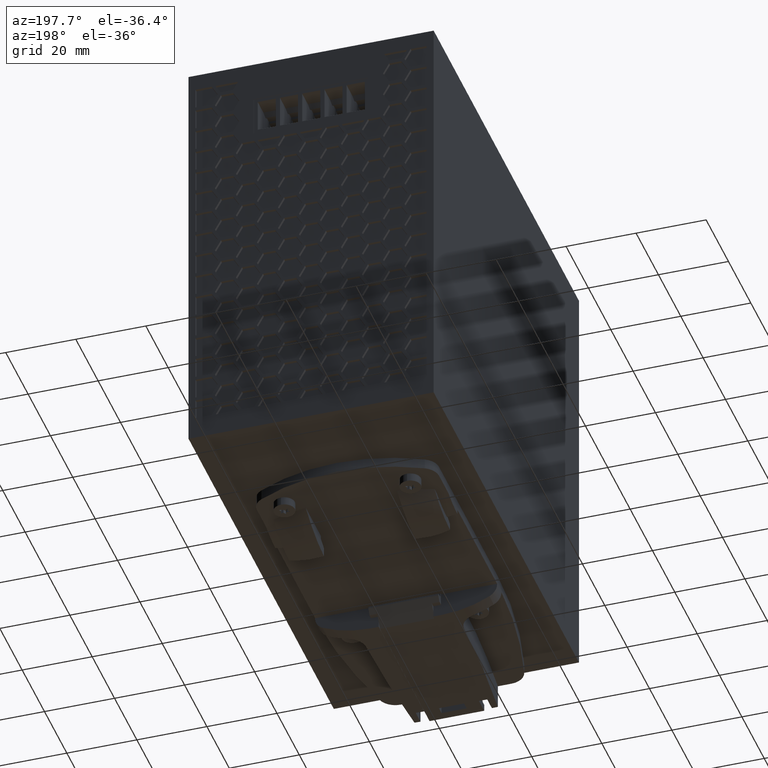
[diagram: clean part render]
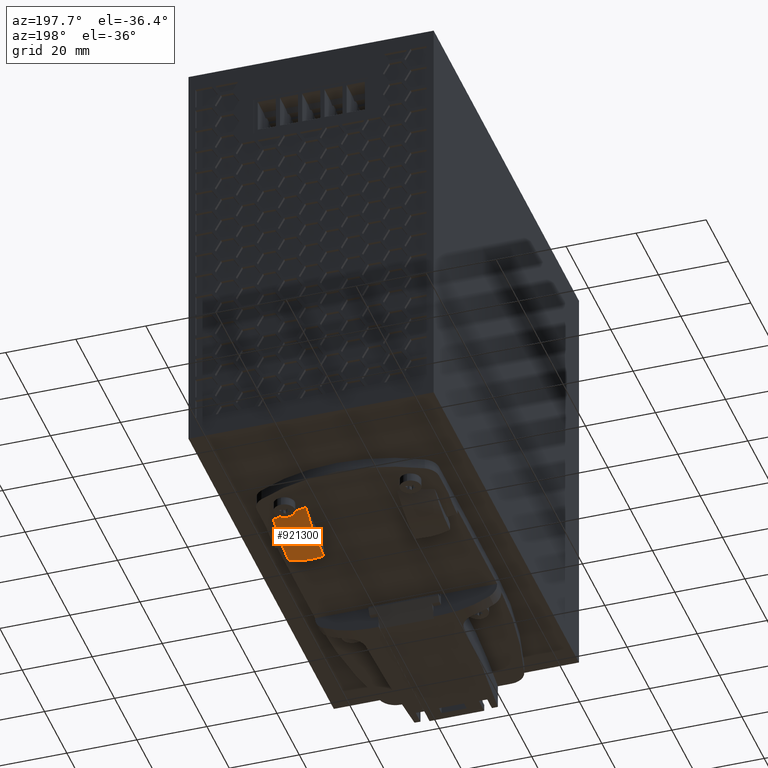
[diagram: same view with one face highlighted and labeled with its STEP entity id]
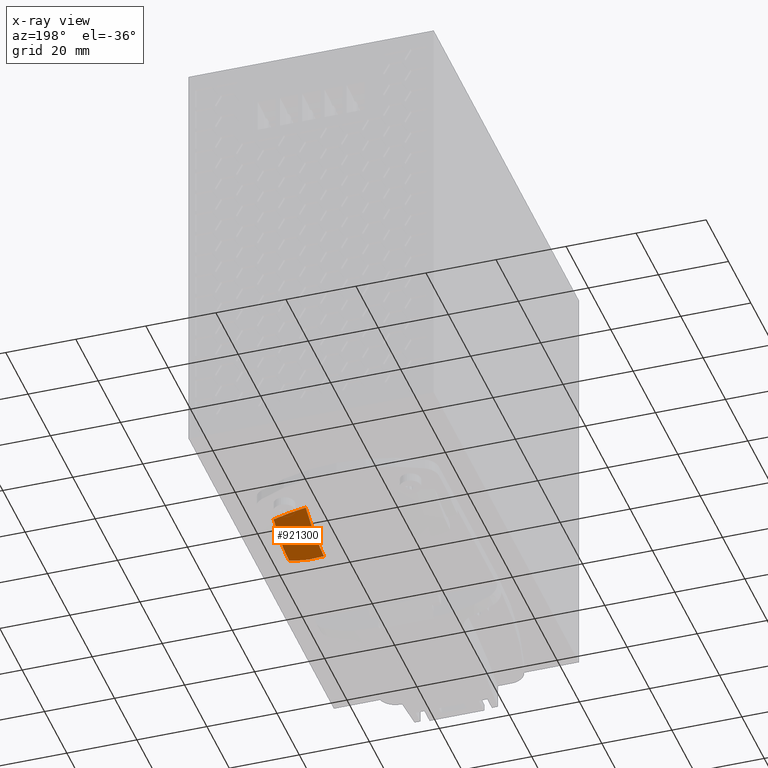
[diagram: x-ray of the same camera — body ghosted, the highlighted face saturated]
A machine part, auxiliary view. The second image highlights one B-rep face of the part: STEP entity #921300.
The next image is the same camera in x-ray: the body ghosted, the highlighted face saturated — about 0% of this face is hidden behind the body in this view.
In plain terms, the highlighted face is a freeform B-spline surface patch.
Its self-contained STEP definition (entity closure, byte-faithful):
#857020=CARTESIAN_POINT('',(40.775,-2.90000000000834,41.3012793438114));
#857030=DIRECTION('',(-0.,-1.,-0.));
#857040=DIRECTION('',(-1.,0.,0.));
#857050=AXIS2_PLACEMENT_3D('',#857020,#857030,#857040);
#857060=PLANE('',#857050);
#857970=CARTESIAN_POINT('',(48.,-2.90000000000833,35.0890003545074));
#857980=VERTEX_POINT('',#857970);
#858010=CARTESIAN_POINT('',(77.1253755992074,-0.0241589224175964,
72.1587178152712));
#858020=CARTESIAN_POINT('',(70.664335661752,-2.44680798529034,
72.1423752645615));
#858030=CARTESIAN_POINT('',(64.2032957242966,-4.86945704816309,
72.1260327138517));
#858040=CARTESIAN_POINT('',(57.116849966181,-7.52660997419168,
72.1081082620181));
#858050=CARTESIAN_POINT('',(55.4817624491728,-8.01054048713559,
72.1026745609463));
#858060=CARTESIAN_POINT('',(53.0048222348098,-8.47560821841205,
72.0958242037655));
#858070=CARTESIAN_POINT('',(50.531224145998,-8.77872838090007,
72.0896174033807));
#858080=CARTESIAN_POINT('',(48.8969625614281,-8.93745837376605,
72.0836407750356));
#858090=CARTESIAN_POINT('',(41.6059163517444,-9.66752494661325,
72.0452335305841));
#858100=CARTESIAN_POINT('',(34.6462783539561,-10.3644069735786,
72.0085720542763));
#858110=CARTESIAN_POINT('',(27.6866403561679,-11.061289000544,
71.9719105779686));
#858120=CARTESIAN_POINT('',(77.5276185271797,-1.24850639758709,
63.6743777458501));
#858130=CARTESIAN_POINT('',(70.8648921265509,-3.25933271310826,
64.0517662746745));
#858140=CARTESIAN_POINT('',(64.202165725922,-5.27015902862943,
64.429154803499));
#858150=CARTESIAN_POINT('',(57.1170084165071,-7.40847597438215,
64.83047056115));
#858160=CARTESIAN_POINT('',(55.4835227722201,-7.80818977591963,
64.9197530436208));
#858170=CARTESIAN_POINT('',(53.0096291173331,-8.20601429825965,
65.0455605995791));
#858180=CARTESIAN_POINT('',(50.536674531595,-8.4635011099262,
65.1590996413321));
#858190=CARTESIAN_POINT('',(48.8996883805471,-8.58405179567897,
65.2236453799651));
#858200=CARTESIAN_POINT('',(41.5864955266555,-9.08909086257061,
65.4816174814066));
#858210=CARTESIAN_POINT('',(34.616242083493,-9.57044700417158,
65.7274924315463));
#858220=CARTESIAN_POINT('',(27.6459886403305,-10.0518031457725,
65.973367381686));
#858230=CARTESIAN_POINT('',(77.7891256204954,-2.56441545349597,
55.1583081392259));
#858240=CARTESIAN_POINT('',(70.9950806740214,-4.11763823129587,
55.9452925161861));
#858250=CARTESIAN_POINT('',(64.2010357275474,-5.67086100909577,
56.7322768931462));
#858260=CARTESIAN_POINT('',(57.1171668668331,-7.29034197457263,
57.5528328602818));
#858270=CARTESIAN_POINT('',(55.4852830952674,-7.60583906470366,
57.7368315262953));
#858280=CARTESIAN_POINT('',(53.0144359998564,-7.93642037810725,
57.9952969953928));
#858290=CARTESIAN_POINT('',(50.542124917192,-8.14827383895233,
58.2285818792835));
#858300=CARTESIAN_POINT('',(48.9024141996662,-8.23064521759189,
58.3636499848947));
#858310=CARTESIAN_POINT('',(41.5670747015666,-8.51065677852796,
58.9180014322293));
#858320=CARTESIAN_POINT('',(34.6125468289466,-8.77613163564808,
59.4435739149636));
#858330=CARTESIAN_POINT('',(27.6580189563267,-9.04160649276821,
59.969146397698));
#858340=CARTESIAN_POINT('',(78.1696514755378,-3.79792069590483,
51.2204589313347));
#858350=CARTESIAN_POINT('',(71.1848305891203,-4.92113887413827,
51.1338560758106));
#858360=CARTESIAN_POINT('',(64.2000097027028,-6.04435705237171,
51.0472532202865));
#858370=CARTESIAN_POINT('',(57.1173104197,-7.18331490325943,
50.9594367976895));
#858380=CARTESIAN_POINT('',(55.4869488614582,-7.41435774885076,
50.9397451432499));
#858390=CARTESIAN_POINT('',(53.0192653473317,-7.66556651152655,
50.9120840040626));
#858400=CARTESIAN_POINT('',(50.5478984844721,-7.81435510511426,
50.8871177071137));
#858410=CARTESIAN_POINT('',(48.9053907434349,-7.84473180886766,
50.8726626323847));
#858420=CARTESIAN_POINT('',(41.5459086675707,-7.8271157424021,
50.8133355870377));
#858430=CARTESIAN_POINT('',(34.5659257095143,-7.81040806617569,
50.7570678006358));
#858440=CARTESIAN_POINT('',(27.5859427514579,-7.79370038994928,
50.7008000142339));
#858450=CARTESIAN_POINT('',(78.1958360681451,-4.00604229597548,
50.5184521958206));
#858460=CARTESIAN_POINT('',(71.1965962826751,-5.04039651347857,
50.244723242599));
#858470=CARTESIAN_POINT('',(64.1973564972051,-6.07475073098166,
49.9709942893774));
#858480=CARTESIAN_POINT('',(57.1176881079733,-7.120990762953,
49.6941199034814));
#858490=CARTESIAN_POINT('',(55.4880457160437,-7.33505226837741,
49.6328273563541));
#858500=CARTESIAN_POINT('',(53.0210791414076,-7.56938777648838,
49.5489559635167));
#858510=CARTESIAN_POINT('',(50.5495998634878,-7.70554347067014,
49.4754536856325));
#858520=CARTESIAN_POINT('',(48.9061880714091,-7.72731701740634,
49.4343618501615));
#858530=CARTESIAN_POINT('',(41.5402357873154,-7.66458690798904,
49.2692298713624));
#858540=CARTESIAN_POINT('',(34.5657190482154,-7.60519035187486,
49.1128732041082));
#858550=CARTESIAN_POINT('',(27.5912023091153,-7.54579379576069,
48.9565165368539));
#858560=CARTESIAN_POINT('',(78.1971196207098,-4.20938947861462,
49.581272453886));
#858570=CARTESIAN_POINT('',(71.1924236158769,-5.10420908205171,
48.9980203710671));
#858580=CARTESIAN_POINT('',(64.1877276110439,-5.9990286854888,
48.4147682882482));
#858590=CARTESIAN_POINT('',(57.1190599232003,-6.90202039460803,
47.8261895478082));
#858600=CARTESIAN_POINT('',(55.491467403211,-7.08826144315788,
47.697888985884));
#858610=CARTESIAN_POINT('',(53.02580321421,-7.29328071540834,
47.5279698057012));
#858620=CARTESIAN_POINT('',(50.5534712121632,-7.40991942400524,
47.3847382201042));
#858630=CARTESIAN_POINT('',(48.9078803559888,-7.42311419751246,
47.3085340039519));
#858640=CARTESIAN_POINT('',(41.5281901564157,-7.32745258295249,
47.0118618754869));
#858650=CARTESIAN_POINT('',(34.5659796108065,-7.23720268306673,
46.7319729146323));
#858660=CARTESIAN_POINT('',(27.6037690651973,-7.14695278318096,
46.4520839537777));
#858670=CARTESIAN_POINT('',(78.14727380979,-4.31166005681364,
48.7241720626889));
#858680=CARTESIAN_POINT('',(71.1607007212876,-5.0578303122961,
47.8155644045694));
#858690=CARTESIAN_POINT('',(64.1741276327852,-5.80400056777857,
46.9069567464499));
#858700=CARTESIAN_POINT('',(57.1209978417221,-6.55727911957808,
45.9896933526958));
#858710=CARTESIAN_POINT('',(55.4961282366978,-6.71337018653708,
45.791664681765));
#858720=CARTESIAN_POINT('',(53.0319035358,-6.88582369350843,
45.5348475781017));
#858730=CARTESIAN_POINT('',(50.5582301065976,-6.98290130661178,
45.3239500891211));
#858740=CARTESIAN_POINT('',(48.9099006757897,-6.99142449751895,
45.215640339758));
#858750=CARTESIAN_POINT('',(41.5138068117814,-6.89275794075477,
44.8039510040365));
#858760=CARTESIAN_POINT('',(34.5665232623987,-6.80007867528227,
44.4172438310201));
#858770=CARTESIAN_POINT('',(27.619239713016,-6.70739940980977,
44.0305366580037));
#858780=CARTESIAN_POINT('',(78.0440000129732,-4.31063747550679,
47.9115516637001));
#858790=CARTESIAN_POINT('',(71.1010985749711,-4.90008259340228,
46.6751283753687));
#858800=CARTESIAN_POINT('',(64.1581971369691,-5.48952771129777,
45.4387050870373));
#858810=CARTESIAN_POINT('',(57.1232680192136,-6.08678588358072,
44.1858930932873));
#858820=CARTESIAN_POINT('',(55.5015016347256,-6.21082713726207,
43.9171433231477));
#858830=CARTESIAN_POINT('',(53.03876259293,-6.3484053935083,
43.5734112051015));
#858840=CARTESIAN_POINT('',(50.5634489952508,-6.4261743734329,
43.2960038942695));
#858850=CARTESIAN_POINT('',(48.9120816722819,-6.43311954809042,
43.1569010522286));
#858860=CARTESIAN_POINT('',(41.4982779088274,-6.35430492300394,
42.6368091027382));
#858870=CARTESIAN_POINT('',(34.5678390048054,-6.28062885045968,
42.1506260858386));
#858880=CARTESIAN_POINT('',(27.6374001007833,-6.20695277791541,
41.6644430689391));
#858890=CARTESIAN_POINT('',(77.8902779541947,-4.19590071246779,
47.1103177431818));
#858900=CARTESIAN_POINT('',(71.0159086210256,-4.62461350843402,
45.5561849567794));
#858910=CARTESIAN_POINT('',(64.1415392878565,-5.05332630440024,
44.002052170377));
#858920=CARTESIAN_POINT('',(57.1256419464317,-5.49086534539146,
42.4159232389954));
#858930=CARTESIAN_POINT('',(55.507071692385,-5.58179742062032,
42.0770270095323));
#858940=CARTESIAN_POINT('',(53.04577249166,-5.68331420490824,
41.6471466100013));
#858950=CARTESIAN_POINT('',(50.5687045090808,-5.74209663392696,
41.3035821765645));
#858960=CARTESIAN_POINT('',(48.9142568856916,-5.74934888144503,
41.1334457825351));
#858970=CARTESIAN_POINT('',(41.482789162899,-5.70391667955919,
40.5023934347984));
#858980=CARTESIAN_POINT('',(34.5714646411442,-5.66166436781089,
39.9155096955276));
#858990=CARTESIAN_POINT('',(27.6601401193894,-5.61941205606258,
39.3286259562567));
#859000=CARTESIAN_POINT('',(77.6944328974397,-3.94963908265929,
46.2917333179676));
#859010=CARTESIAN_POINT('',(70.9100763684923,-4.22030323552199,
44.4408317905988));
#859020=CARTESIAN_POINT('',(64.1257198395449,-4.4909673883847,
42.5899302632299));
#859030=CARTESIAN_POINT('',(57.1278964491967,-4.77014787245122,
40.6807909150561));
#859040=CARTESIAN_POINT('',(55.5123331817069,-4.82816264350902,
40.273731021188));
#859050=CARTESIAN_POINT('',(53.05233495746,-4.89373821890814,
39.7592036742016));
#859060=CARTESIAN_POINT('',(50.5735774616433,-4.93369884585104,
39.3491353738253));
#859070=CARTESIAN_POINT('',(48.9162607550087,-4.94153992488759,
39.1463135750572));
#859080=CARTESIAN_POINT('',(41.4685198488878,-4.93143756568219,
38.3933066299252));
#859090=CARTESIAN_POINT('',(34.5795051498765,-4.92209308096689,
37.696789930585));
#859100=CARTESIAN_POINT('',(27.6904904508651,-4.91274859625159,
37.0002732312449));
#859110=CARTESIAN_POINT('',(77.4693838324478,-3.54778055712907,
45.4329560162867));
#859120=CARTESIAN_POINT('',(70.7908254825482,-3.67182863586377,
43.3145603817995));
#859130=CARTESIAN_POINT('',(64.1122671326485,-3.79587671459848,
41.1961647473123));
#859140=CARTESIAN_POINT('',(57.1298136888351,-3.92556936519463,
38.9813755490406));
#859150=CARTESIAN_POINT('',(55.5167915526307,-3.95252071180386,
38.509383451989));
#859160=CARTESIAN_POINT('',(53.0578613363308,-3.98376503845253,
37.9123958524483));
#859170=CARTESIAN_POINT('',(50.5776528499558,-4.00468432189791,
37.4348814220592));
#859180=CARTESIAN_POINT('',(48.9179286183689,-4.01139780775344,
37.1964524716643));
#859190=CARTESIAN_POINT('',(41.4566427987235,-4.02473294505085,
36.302796249533));
#859200=CARTESIAN_POINT('',(34.5944271354381,-4.03699739788731,
35.4808921068241));
#859210=CARTESIAN_POINT('',(27.7322114721528,-4.04926185072376,
34.6589879641153));
#859220=CARTESIAN_POINT('',(77.3136354720964,-3.15753869570322,
44.8258220783123));
#859230=CARTESIAN_POINT('',(70.7097529595056,-3.19786047207976,
42.5507634475484));
#859240=CARTESIAN_POINT('',(64.1058704469148,-3.2381822484563,
40.2757048167846));
#859250=CARTESIAN_POINT('',(57.1307253368297,-3.28077086822452,
37.8727450346755));
#859260=CARTESIAN_POINT('',(55.5189058040953,-3.28963104535092,
37.3603452521709));
#859270=CARTESIAN_POINT('',(53.0604688394332,-3.30017646620769,
36.7102660582208));
#859280=CARTESIAN_POINT('',(50.5795641843839,-3.30784766765623,
36.1868316590526));
#859290=CARTESIAN_POINT('',(48.9187073473575,-3.31106978229951,
35.9219645235535));
#859300=CARTESIAN_POINT('',(41.4510972061684,-3.32137070032301,
34.9174360069633));
#859310=CARTESIAN_POINT('',(34.6104624301834,-3.33080676041771,
33.9972470075197));
#859320=CARTESIAN_POINT('',(27.7698276541984,-3.34024282051241,
33.0770580080761));
#859330=CARTESIAN_POINT('',(76.4083338205937,-0.736202104567354,
41.4542382954953));
#859340=CARTESIAN_POINT('',(70.2452213123736,-0.424581733889091,
38.5085634530792));
#859350=CARTESIAN_POINT('',(64.0821088041536,-0.112961363210827,
35.5628886106631));
#859360=CARTESIAN_POINT('',(57.1341118339912,0.23834447266767,
32.2420763014778));
#859370=CARTESIAN_POINT('',(55.5267514968996,0.311429839580776,
31.5311225807569));
#859380=CARTESIAN_POINT('',(53.0701214650967,0.398400269451116,
30.6141907473977));
#859390=CARTESIAN_POINT('',(50.5866161838789,0.461631629509813,
29.8517825143394));
#859400=CARTESIAN_POINT('',(48.9215725947422,0.488150789407816,
29.4424991364718));
#859410=CARTESIAN_POINT('',(41.4306924170975,0.57277535608233,
27.8139112168226));
#859420=CARTESIAN_POINT('',(34.743598629147,0.648319537900372,
26.3600740304905));
#859430=CARTESIAN_POINT('',(28.0565048411964,0.723863719718414,
24.9062368441584));
#859440=CARTESIAN_POINT('',(76.7062872300324,4.16935056400055,
34.6662801668324));
#859450=CARTESIAN_POINT('',(70.38124465141,4.14247582402699,
31.8927173322943));
#859460=CARTESIAN_POINT('',(64.0562020727876,4.11560108405342,
29.1191544977562));
#859470=CARTESIAN_POINT('',(57.1378146877937,4.08620525632627,
26.0854069952791));
#859480=CARTESIAN_POINT('',(55.534955297764,4.07685720681804,
25.43583142128));
#859490=CARTESIAN_POINT('',(53.0796502731668,4.04953407233294,
24.596311919126));
#859500=CARTESIAN_POINT('',(50.5932455893868,4.00522332038507,
23.8963638103901));
#859510=CARTESIAN_POINT('',(48.9241921153071,3.96154595645529,
23.5187199465663));
#859520=CARTESIAN_POINT('',(41.4120041351111,3.73001877239524,
22.0121443375364));
#859530=CARTESIAN_POINT('',(34.7044861137435,3.52329168254961,
20.6669459646041));
#859540=CARTESIAN_POINT('',(27.9969680923758,3.31656459270398,
19.3217475916718));
#859550=CARTESIAN_POINT('',(76.9457883360215,9.11303885729295,
27.8250655245848));
#859560=CARTESIAN_POINT('',(70.4880418387216,8.72860119430532,
25.250242954717));
#859570=CARTESIAN_POINT('',(64.0302953414217,8.34416353131769,
22.6754203848492));
#859580=CARTESIAN_POINT('',(57.1415175415962,7.93406603998487,
19.9287376890804));
#859590=CARTESIAN_POINT('',(55.5431590986283,7.84228457405531,
19.3405402618031));
#859600=CARTESIAN_POINT('',(53.0891790812369,7.70066787521476,
18.5784330908543));
#859610=CARTESIAN_POINT('',(50.5998749948948,7.54881501126033,
17.9409451064408));
#859620=CARTESIAN_POINT('',(48.9268116358721,7.43494112350275,
17.5949407566607));
#859630=CARTESIAN_POINT('',(41.3933158531247,6.88726218870817,
16.2103774582502));
#859640=CARTESIAN_POINT('',(34.6850957402231,6.39958011497352,
14.9774896152314));
#859650=CARTESIAN_POINT('',(27.9768756273215,5.91189804123886,
13.7446017722126));
#859660=B_SPLINE_SURFACE_WITH_KNOTS('',3,3,((#858010,#858120,#858230,
#858340,#858450,#858560,#858670,#858780,#858890,#859000,#859110,#859220,
#859330,#859440,#859550),(#858020,#858130,#858240,#858350,#858460,
#858570,#858680,#858790,#858900,#859010,#859120,#859230,#859340,#859450,
#859560),(#858030,#858140,#858250,#858360,#858470,#858580,#858690,
#858800,#858910,#859020,#859130,#859240,#859350,#859460,#859570),(
#858040,#858150,#858260,#858370,#858480,#858590,#858700,#858810,#858920,
#859030,#859140,#859250,#859360,#859470,#859580),(#858050,#858160,
#858270,#858380,#858490,#858600,#858710,#858820,#858930,#859040,#859150,
#859260,#859370,#859480,#859590),(#858060,#858170,#858280,#858390,
#858500,#858610,#858720,#858830,#858940,#859050,#859160,#859270,#859380,
#859490,#859600),(#858070,#858180,#858290,#858400,#858510,#858620,
#858730,#858840,#858950,#859060,#859170,#859280,#859390,#859500,#859610)
,(#858080,#858190,#858300,#858410,#858520,#858630,#858740,#858850,
#858960,#859070,#859180,#859290,#859400,#859510,#859620),(#858090,
#858200,#858310,#858420,#858530,#858640,#858750,#858860,#858970,#859080,
#859190,#859300,#859410,#859520,#859630),(#858100,#858210,#858320,
#858430,#858540,#858650,#858760,#858870,#858980,#859090,#859200,#859310,
#859420,#859530,#859640),(#858110,#858220,#858330,#858440,#858550,
#858660,#858770,#858880,#858990,#859100,#859210,#859320,#859430,#859540,
#859650)),.UNSPECIFIED.,.F.,.F.,.F.,(4,2,1,1,1,2,4),(4,2,1,1,1,1,1,1,1,2
,4),(-1.88944656118273,0.00831619238758589,0.25,0.5,0.75,
0.990153097493994,2.94222789825215),(-1.16260988824048,
-7.67162766264694E-9,0.12442326814,0.2488465362801,0.3732698044201,
0.4976930725602,0.6221163407002,0.7465396088403,0.8709628769803,
0.995386222790939,2.14909557170856),.UNSPECIFIED.);
#859670=CARTESIAN_POINT('',(48.,-2.90000000000834,35.0890003545074));
#859680=CARTESIAN_POINT('',(48.8517527674043,-2.90000000000834,
35.2112415140407));
#859690=CARTESIAN_POINT('',(49.7000614963543,-2.90000000000833,
35.3518880738993));
#859700=CARTESIAN_POINT('',(50.5447742805632,-2.90000000000833,
35.5161732547488));
#859710=CARTESIAN_POINT('',(51.3890944700488,-2.90000000000833,
35.6803820812487));
#859720=CARTESIAN_POINT('',(52.2294337389637,-2.90000000000833,
35.866508237478));
#859730=CARTESIAN_POINT('',(53.0641269338766,-2.90000000000833,
36.0741730200846));
#859740=CARTESIAN_POINT('',(53.8988232812549,-2.90000000000833,
36.2818385869986));
#859750=CARTESIAN_POINT('',(54.7284075510733,-2.90000000000834,
36.5111752533473));
#859760=CARTESIAN_POINT('',(55.5512976913298,-2.90000000000834,
36.7615519458046));
#859770=CARTESIAN_POINT('',(56.3745144834575,-2.90000000000834,
37.012028027003));
#859780=CARTESIAN_POINT('',(57.1901476076442,-2.90000000000833,
37.2846987098254));
#859790=CARTESIAN_POINT('',(58.,-2.90000000000833,37.575340814434));
#859800=B_SPLINE_CURVE_WITH_KNOTS('',3,(#859670,#859680,#859690,#859700,
#859710,#859720,#859730,#859740,#859750,#859760,#859770,#859780,#859790)
,.UNSPECIFIED.,.F.,.F.,(4,3,3,3,4),(0.,2.58064236166617,5.16133759229413
,7.74203156768034,10.3226785169198),.UNSPECIFIED.);
#859810=SURFACE_CURVE('',#859800,(#857060,#859660),.CURVE_3D.);
#859820=CARTESIAN_POINT('',(58.,-2.90000000000833,37.575340814434));
#859830=VERTEX_POINT('',#859820);
#859840=EDGE_CURVE('',#857980,#859830,#859810,.T.);
#889660=CARTESIAN_POINT('',(58.,-2.90000000000834,21.8968498908008));
#889670=DIRECTION('',(-1.,0.,0.));
#889680=DIRECTION('',(0.,0.,1.));
#889690=AXIS2_PLACEMENT_3D('',#889660,#889670,#889680);
#889700=PLANE('',#889690);
#889710=CARTESIAN_POINT('',(58.,-2.9000000000083,37.575340814434));
#889720=CARTESIAN_POINT('',(58.,-3.22404313963493,38.0904706637892));
#889730=CARTESIAN_POINT('',(58.,-3.534084426434,38.6134912513692));
#889740=CARTESIAN_POINT('',(58.,-3.82591975197123,39.14765164171));
#889750=CARTESIAN_POINT('',(58.,-4.11751825441438,39.6813785632233));
#889760=CARTESIAN_POINT('',(58.,-4.39177270286829,40.2249986944068));
#889770=CARTESIAN_POINT('',(58.,-4.64702850284321,40.7771344792189));
#889780=CARTESIAN_POINT('',(58.,-5.15762829314508,41.8815968106172));
#889790=CARTESIAN_POINT('',(58.,-5.59219291491517,43.020884673348));
#889800=CARTESIAN_POINT('',(58.,-5.94339690212169,44.1860266406154));
#889810=CARTESIAN_POINT('',(58.,-6.2945758897707,45.3510856702321));
#889820=CARTESIAN_POINT('',(58.,-6.56201438456371,46.5408126490161));
#889830=CARTESIAN_POINT('',(58.,-6.74469223922665,47.7439116566008));
#889840=CARTESIAN_POINT('',(58.,-6.92735990714421,48.9469435752475));
#889850=CARTESIAN_POINT('',(58.,-7.02521823779406,50.1622223261922));
#889860=CARTESIAN_POINT('',(58.,-7.04349894822712,51.3788823513446));
#889870=B_SPLINE_CURVE_WITH_KNOTS('',3,(#889710,#889720,#889730,#889740,
#889750,#889760,#889770,#889780,#889790,#889800,#889810,#889820,#889830,
#889840,#889850,#889860),.UNSPECIFIED.,.F.,.F.,(4,3,3,3,3,4),(0.,
1.82497602623129,3.64999091552382,7.30005244746997,10.950123135396,
14.6001530451546),.UNSPECIFIED.);
#889880=SURFACE_CURVE('',#889870,(#889700,#859660),.CURVE_3D.);
#889890=CARTESIAN_POINT('',(58.0000000000104,-7.04349894822546,
51.3788823513478));
#889900=VERTEX_POINT('',#889890);
#889910=EDGE_CURVE('',#859830,#889900,#889880,.T.);
#920430=CARTESIAN_POINT('',(48.,-2.90000000000833,536.346849890801));
#920440=DIRECTION('',(-1.,0.,0.));
#920450=DIRECTION('',(0.,0.,1.));
#920460=AXIS2_PLACEMENT_3D('',#920430,#920440,#920450);
#920470=PLANE('',#920460);
#920550=CARTESIAN_POINT('',(47.9999999999841,-7.87067313816699,
51.3797583463967));
#920560=VERTEX_POINT('',#920550);
#920590=CARTESIAN_POINT('',(48.,-2.90000000000834,35.0890003545074));
#920600=CARTESIAN_POINT('',(48.,-3.26008026239819,35.7084796749233));
#920610=CARTESIAN_POINT('',(48.,-3.60544590254619,36.335703398766));
#920620=CARTESIAN_POINT('',(48.,-3.93192034320342,36.9736355309573));
#920630=CARTESIAN_POINT('',(48.,-4.25819803098728,37.6111832073862));
#920640=CARTESIAN_POINT('',(48.,-4.56654321493575,38.2582622333778));
#920650=CARTESIAN_POINT('',(48.,-4.8556601428362,38.9135766390644));
#920660=CARTESIAN_POINT('',(48.,-5.43396289179564,40.2243616041417));
#920670=CARTESIAN_POINT('',(48.,-5.93540520100835,41.5688497629844));
#920680=CARTESIAN_POINT('',(48.,-6.35435564650615,42.9390116937384));
#920690=CARTESIAN_POINT('',(48.,-6.77328734784705,44.3091123224207));
#920700=CARTESIAN_POINT('',(48.,-7.10949733973172,45.704159505921));
#920710=CARTESIAN_POINT('',(48.,-7.36186684069366,47.1145166834072));
#920720=CARTESIAN_POINT('',(48.,-7.61422863427166,48.5248307884769));
#920730=CARTESIAN_POINT('',(48.,-7.78269205975945,49.9497512296753));
#920740=CARTESIAN_POINT('',(48.,-7.87067313816703,51.3797583463975));
#920750=B_SPLINE_CURVE_WITH_KNOTS('',3,(#920590,#920600,#920610,#920620,
#920630,#920640,#920650,#920660,#920670,#920680,#920690,#920700,#920710,
#920720,#920730,#920740),.UNSPECIFIED.,.F.,.F.,(4,3,3,3,3,4),(0.,
2.14890927113325,4.29784847049062,8.59574526862519,12.8936466122272,
17.1915226162553),.UNSPECIFIED.);
#920760=SURFACE_CURVE('',#920750,(#920470,#859660),.CURVE_3D.);
#920770=EDGE_CURVE('',#857980,#920560,#920760,.T.);
#920890=CARTESIAN_POINT('',(52.99739573357,0.0999999999916668,
21.6500835190014));
#920900=DIRECTION('',(0.,1.,0.));
#920910=DIRECTION('',(0.,0.,1.));
#920920=AXIS2_PLACEMENT_3D('',#920890,#920900,#920910);
#920930=CYLINDRICAL_SURFACE('',#920920,30.14676648433);
#920950=CARTESIAN_POINT('',(48.,-7.87067313816714,51.3797583463994));
#920960=CARTESIAN_POINT('',(48.8295967338758,-7.87881695831124,
51.5192090199276));
#920970=CARTESIAN_POINT('',(49.6643278979271,-7.8679408941937,
51.6238226084132));
#920980=CARTESIAN_POINT('',(50.5021849042176,-7.83611416621098,
51.6934097725607));
#920990=CARTESIAN_POINT('',(51.3396843411133,-7.8043010208131,
51.7629672392301));
#921000=CARTESIAN_POINT('',(52.1802221882397,-7.75256681326818,
51.7974219123439));
#921010=CARTESIAN_POINT('',(53.0182287573066,-7.68176845382866,
51.7968428049652));
#921020=CARTESIAN_POINT('',(53.8562472193132,-7.610969089623,
51.7962636893679));
#921030=CARTESIAN_POINT('',(54.6933976496343,-7.5208554742215,
51.7606607836537));
#921040=CARTESIAN_POINT('',(55.5245816914605,-7.41354521276974,
51.6907369838474));
#921050=CARTESIAN_POINT('',(56.3559568154955,-7.30621028159293,
51.6207971091486));
#921060=CARTESIAN_POINT('',(57.181555690497,-7.18073208018799,
51.5166058099273));
#921070=CARTESIAN_POINT('',(58.,-7.04349894822719,51.3788823513495));
#921080=B_SPLINE_CURVE_WITH_KNOTS('',3,(#920950,#920960,#920970,#920980,
#920990,#921000,#921010,#921020,#921030,#921040,#921050,#921060,#921070)
,.UNSPECIFIED.,.F.,.F.,(4,3,3,3,4),(0.,2.52297631559767,5.04682906361543
,7.57064632369015,10.0937644695667),.UNSPECIFIED.);
#921090=SURFACE_CURVE('',#921080,(#920930,#859660),.CURVE_3D.);
#921100=EDGE_CURVE('',#920560,#889900,#921090,.T.);
#921240=ORIENTED_EDGE('',*,*,#889910,.T.);
#921250=ORIENTED_EDGE('',*,*,#859840,.T.);
#921260=ORIENTED_EDGE('',*,*,#920770,.F.);
#921270=ORIENTED_EDGE('',*,*,#921100,.F.);
#921280=EDGE_LOOP('',(#921270,#921260,#921250,#921240));
#921290=FACE_OUTER_BOUND('',#921280,.T.);
#921300=ADVANCED_FACE('',(#921290),#859660,.T.);